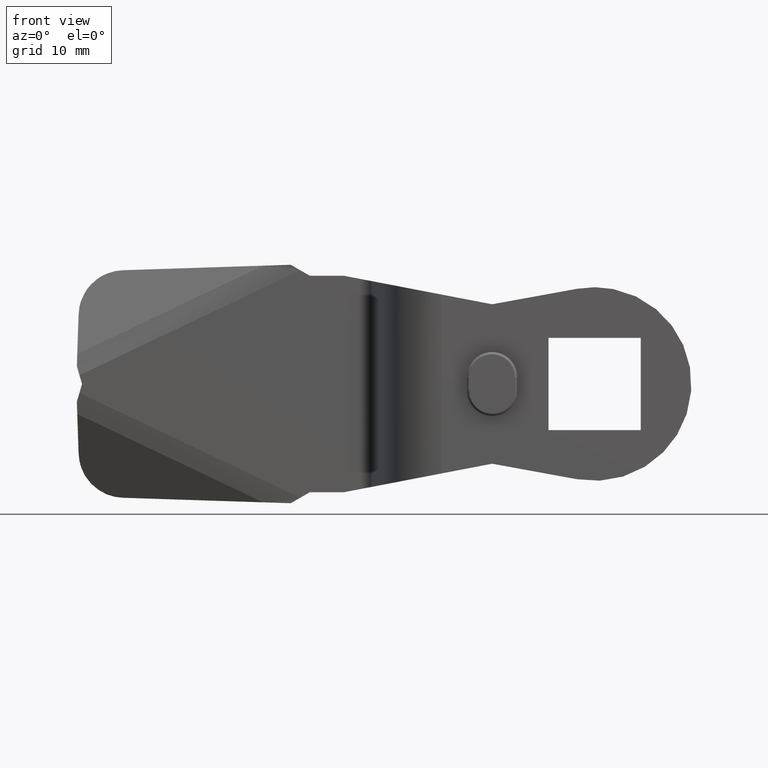
[diagram: clean part render]
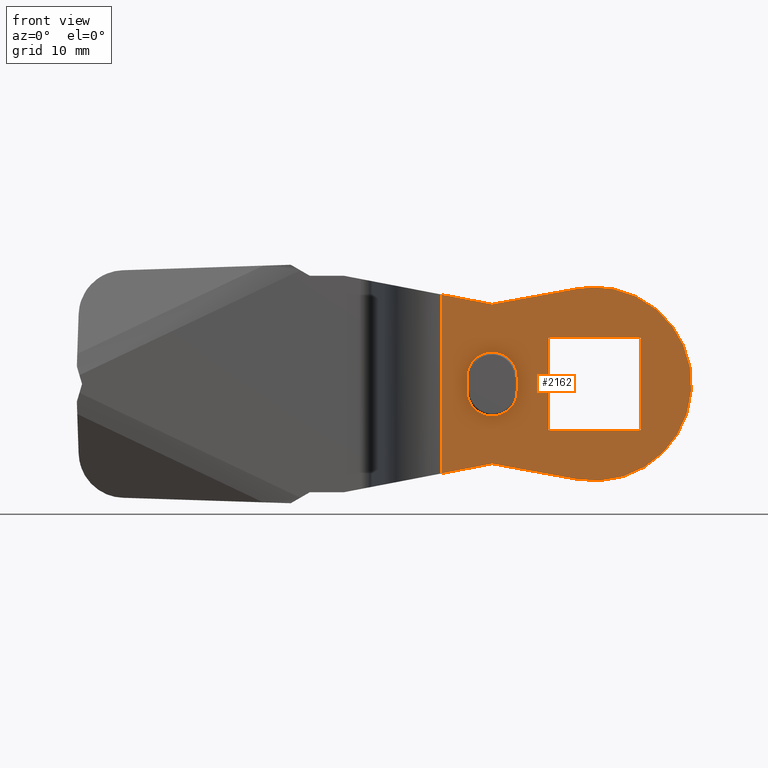
[diagram: same view with one face highlighted and labeled with its STEP entity id]
A machine part, front view. The second image highlights one B-rep face of the part: STEP entity #2162.
In plain terms, the highlighted face is a freeform B-spline surface patch.
Its self-contained STEP definition (entity closure, byte-faithful):
#737=CARTESIAN_POINT('',(-13.454972539541940,-22.000000189999898,7.856725738648650));
#738=VERTEX_POINT('',#737);
#759=CARTESIAN_POINT('',(-13.454972539541940,-22.000000189999952,-7.856725738648660));
#760=VERTEX_POINT('',#759);
#774=CARTESIAN_POINT('',(-13.454972539541940,-22.000000189999898,7.856725738648650));
#775=CARTESIAN_POINT('',(-13.454972539541940,-22.000000189999952,-7.856725738648660));
#776=QUASI_UNIFORM_CURVE('',1,(#774,#775),.UNSPECIFIED.,.F.,.U.);
#777=EDGE_CURVE('',#738,#760,#776,.T.);
#962=CARTESIAN_POINT('',(-6.800000322982700,-22.000000190000051,-0.600000028281858));
#963=VERTEX_POINT('',#962);
#970=CARTESIAN_POINT('',(-11.200000531971501,-22.000000190000051,-0.600000027900421));
#971=VERTEX_POINT('',#970);
#977=CARTESIAN_POINT('',(-11.200000531971479,-22.000000190000051,-0.600000027900420));
#978=CARTESIAN_POINT('',(-11.200000532316771,-22.000000190000048,-1.870170680628504));
#979=CARTESIAN_POINT('',(-10.100000480007040,-22.000000190000051,-2.505256007155796));
#980=CARTESIAN_POINT('',(-9.000000427697312,-22.000000190000048,-3.140341333683089));
#981=CARTESIAN_POINT('',(-7.900000375277472,-22.000000190000051,-2.505256007346515));
#982=CARTESIAN_POINT('',(-6.800000322857630,-22.000000190000048,-1.870170681009942));
#983=CARTESIAN_POINT('',(-6.800000322982699,-22.000000190000051,-0.600000028281858));
#991=(BOUNDED_CURVE()B_SPLINE_CURVE(2,(#977,#978,#979,#980,#981,#982,#983),.UNSPECIFIED.,.F.,.U.)B_SPLINE_CURVE_WITH_KNOTS((3,2,2,3),(0.0,0.333333333333333,0.666666666666667,1.0),.UNSPECIFIED.)CURVE()GEOMETRIC_REPRESENTATION_ITEM()RATIONAL_B_SPLINE_CURVE((1.0,0.866025403753579,1.0,0.866025403753579,1.0,0.866025403753579,1.0))REPRESENTATION_ITEM(''));
#992=EDGE_CURVE('',#971,#963,#991,.T.);
#1004=CARTESIAN_POINT('',(-11.200000531971501,-22.000000190000051,0.600000028498428));
#1005=VERTEX_POINT('',#1004);
#1011=CARTESIAN_POINT('',(-11.200000531971501,-22.000000190000051,0.600000028498428));
#1012=CARTESIAN_POINT('',(-11.200000531971501,-22.000000190000051,-0.600000027900421));
#1013=QUASI_UNIFORM_CURVE('',1,(#1011,#1012),.UNSPECIFIED.,.F.,.U.);
#1014=EDGE_CURVE('',#1005,#971,#1013,.T.);
#1039=CARTESIAN_POINT('',(-6.800000322982689,-22.000000190000051,0.600000027900379));
#1040=VERTEX_POINT('',#1039);
#1046=CARTESIAN_POINT('',(-6.800000322982695,-22.000000190000051,0.600000027900379));
#1047=CARTESIAN_POINT('',(-6.800000322637410,-22.000000190000044,1.870170680580322));
#1048=CARTESIAN_POINT('',(-7.900000374884608,-22.000000190000051,2.505256007119644));
#1049=CARTESIAN_POINT('',(-9.000000427131807,-22.000000190000044,3.140341333658965));
#1050=CARTESIAN_POINT('',(-10.100000479551641,-22.000000190000051,2.505256007418669));
#1051=CARTESIAN_POINT('',(-11.200000531971485,-22.000000190000044,1.870170681178371));
#1052=CARTESIAN_POINT('',(-11.200000531971490,-22.000000190000051,0.600000028498428));
#1060=(BOUNDED_CURVE()B_SPLINE_CURVE(2,(#1046,#1047,#1048,#1049,#1050,#1051,#1052),.UNSPECIFIED.,.F.,.U.)B_SPLINE_CURVE_WITH_KNOTS((3,2,2,3),(0.0,0.333333333333333,0.666666666666667,1.0),.UNSPECIFIED.)CURVE()GEOMETRIC_REPRESENTATION_ITEM()RATIONAL_B_SPLINE_CURVE((1.0,0.866025403761785,1.0,0.866025403761785,1.0,0.866025403761785,1.0))REPRESENTATION_ITEM(''));
#1061=EDGE_CURVE('',#1040,#1005,#1060,.T.);
#1074=CARTESIAN_POINT('',(-6.800000322982700,-22.000000190000051,-0.600000028281858));
#1075=CARTESIAN_POINT('',(-6.800000322982689,-22.000000190000051,0.600000027900379));
#1076=QUASI_UNIFORM_CURVE('',1,(#1074,#1075),.UNSPECIFIED.,.F.,.U.);
#1077=EDGE_CURVE('',#963,#1040,#1076,.T.);
#1550=CARTESIAN_POINT('',(-4.050000192364635,-22.000000199999949,4.050000192364690));
#1551=VERTEX_POINT('',#1550);
#1557=CARTESIAN_POINT('',(-4.050000192364635,-22.000000199999949,-4.050000192364680));
#1558=VERTEX_POINT('',#1557);
#1559=CARTESIAN_POINT('',(-4.050000192364635,-22.000000199999949,-4.050000192364680));
#1560=CARTESIAN_POINT('',(-4.050000192364635,-22.000000199999949,4.050000192364690));
#1561=QUASI_UNIFORM_CURVE('',1,(#1559,#1560),.UNSPECIFIED.,.F.,.U.);
#1562=EDGE_CURVE('',#1558,#1551,#1561,.T.);
#1584=CARTESIAN_POINT('',(4.050000192364690,-22.000000199999949,4.050000192364690));
#1585=VERTEX_POINT('',#1584);
#1591=CARTESIAN_POINT('',(-4.050000192364635,-22.000000199999949,4.050000192364690));
#1592=CARTESIAN_POINT('',(4.050000192364690,-22.000000199999949,4.050000192364690));
#1593=QUASI_UNIFORM_CURVE('',1,(#1591,#1592),.UNSPECIFIED.,.F.,.U.);
#1594=EDGE_CURVE('',#1551,#1585,#1593,.T.);
#1612=CARTESIAN_POINT('',(4.050000192364690,-22.000000199999949,-4.050000192364665));
#1613=VERTEX_POINT('',#1612);
#1619=CARTESIAN_POINT('',(4.050000192364690,-22.000000199999949,4.050000192364690));
#1620=CARTESIAN_POINT('',(4.050000192364690,-22.000000199999949,-4.050000192364665));
#1621=QUASI_UNIFORM_CURVE('',1,(#1619,#1620),.UNSPECIFIED.,.F.,.U.);
#1622=EDGE_CURVE('',#1585,#1613,#1621,.T.);
#1639=CARTESIAN_POINT('',(4.050000192364690,-22.000000199999949,-4.050000192364665));
#1640=CARTESIAN_POINT('',(-4.050000192364635,-22.000000199999949,-4.050000192364680));
#1641=QUASI_UNIFORM_CURVE('',1,(#1639,#1640),.UNSPECIFIED.,.F.,.U.);
#1642=EDGE_CURVE('',#1613,#1558,#1641,.T.);
#1653=CARTESIAN_POINT('',(-9.000000427477108,-22.000000189999952,-7.000000332482510));
#1654=VERTEX_POINT('',#1653);
#1669=CARTESIAN_POINT('',(-1.523762737230910,-22.000000199999949,-8.362305542373751));
#1670=VERTEX_POINT('',#1669);
#1676=CARTESIAN_POINT('',(-9.000000427477108,-22.000000189999952,-7.000000332482510));
#1677=CARTESIAN_POINT('',(-1.523762737230910,-22.000000199999949,-8.362305542373751));
#1678=QUASI_UNIFORM_CURVE('',1,(#1676,#1677),.UNSPECIFIED.,.F.,.U.);
#1679=EDGE_CURVE('',#1654,#1670,#1678,.T.);
#1689=CARTESIAN_POINT('',(-1.523762737230910,-22.000000199999949,8.362305542373589));
#1690=VERTEX_POINT('',#1689);
#1705=CARTESIAN_POINT('',(-9.000000427477460,-22.000000199999949,7.000000332482490));
#1706=VERTEX_POINT('',#1705);
#1712=CARTESIAN_POINT('',(-1.523762737230910,-22.000000199999949,8.362305542373589));
#1713=CARTESIAN_POINT('',(-9.000000427477460,-22.000000199999949,7.000000332482490));
#1714=QUASI_UNIFORM_CURVE('',1,(#1712,#1713),.UNSPECIFIED.,.F.,.U.);
#1715=EDGE_CURVE('',#1690,#1706,#1714,.T.);
#1756=CARTESIAN_POINT('',(-1.523762737230910,-22.000000199999949,-8.362305542373751));
#1757=CARTESIAN_POINT('',(3.999032446587344,-22.000000199999945,-9.368658331543481));
#1758=CARTESIAN_POINT('',(7.092747502208310,-22.000000199999949,-4.684329165771723));
#1759=CARTESIAN_POINT('',(10.186462557829273,-22.000000199999945,3.589490E-014));
#1760=CARTESIAN_POINT('',(7.092747502208290,-22.000000199999949,4.684329165771781));
#1761=CARTESIAN_POINT('',(3.999032446587307,-22.000000199999945,9.368658331543525));
#1762=CARTESIAN_POINT('',(-1.523762737230910,-22.000000199999949,8.362305542373589));
#1770=(BOUNDED_CURVE()B_SPLINE_CURVE(2,(#1756,#1757,#1758,#1759,#1760,#1761,#1762),.UNSPECIFIED.,.F.,.U.)B_SPLINE_CURVE_WITH_KNOTS((3,2,2,3),(0.0,0.333333333333333,0.666666666666667,1.0),.UNSPECIFIED.)CURVE()GEOMETRIC_REPRESENTATION_ITEM()RATIONAL_B_SPLINE_CURVE((1.0,0.834440842978928,1.0,0.834440842978928,1.0,0.834440842978928,1.0))REPRESENTATION_ITEM(''));
#1771=EDGE_CURVE('',#1670,#1690,#1770,.T.);
#1956=CARTESIAN_POINT('',(-13.454972539541940,-22.000000189999952,-7.856725738648660));
#1957=CARTESIAN_POINT('',(-9.000000427477108,-22.000000189999952,-7.000000332482510));
#1958=QUASI_UNIFORM_CURVE('',1,(#1956,#1957),.UNSPECIFIED.,.F.,.U.);
#1959=EDGE_CURVE('',#760,#1654,#1958,.T.);
#2018=CARTESIAN_POINT('',(-9.000000427477460,-22.000000199999949,7.000000332482490));
#2019=CARTESIAN_POINT('',(-13.454972539541940,-22.000000189999898,7.856725738648650));
#2020=QUASI_UNIFORM_CURVE('',1,(#2018,#2019),.UNSPECIFIED.,.F.,.U.);
#2021=EDGE_CURVE('',#1706,#738,#2020,.T.);
#2137=CARTESIAN_POINT('',(-14.551623110969130,-22.000000199999949,9.349129076291225));
#2138=CARTESIAN_POINT('',(9.596650189984514,-22.000000199999949,9.349129076291225));
#2139=CARTESIAN_POINT('',(-14.551623110969130,-22.000000199999949,-9.349129157347084));
#2140=CARTESIAN_POINT('',(9.596650189984514,-22.000000199999949,-9.349129157347084));
#2141=B_SPLINE_SURFACE_WITH_KNOTS('',1,1,((#2137,#2139),(#2138,#2140)),.UNSPECIFIED.,.F.,.F.,.U.,(2,2),(2,2),(0.0,24.148273300953651),(0.0,18.698258233638310),.UNSPECIFIED.);
#2142=ORIENTED_EDGE('',*,*,#2021,.T.);
#2143=ORIENTED_EDGE('',*,*,#777,.T.);
#2144=ORIENTED_EDGE('',*,*,#1959,.T.);
#2145=ORIENTED_EDGE('',*,*,#1679,.T.);
#2146=ORIENTED_EDGE('',*,*,#1771,.T.);
#2147=ORIENTED_EDGE('',*,*,#1715,.T.);
#2148=EDGE_LOOP('',(#2142,#2143,#2144,#2145,#2146,#2147));
#2149=FACE_OUTER_BOUND('',#2148,.T.);
#2150=ORIENTED_EDGE('',*,*,#1622,.T.);
#2151=ORIENTED_EDGE('',*,*,#1642,.T.);
#2152=ORIENTED_EDGE('',*,*,#1562,.T.);
#2153=ORIENTED_EDGE('',*,*,#1594,.T.);
#2154=EDGE_LOOP('',(#2150,#2151,#2152,#2153));
#2155=FACE_BOUND('',#2154,.T.);
#2156=ORIENTED_EDGE('',*,*,#1061,.F.);
#2157=ORIENTED_EDGE('',*,*,#1077,.F.);
#2158=ORIENTED_EDGE('',*,*,#992,.F.);
#2159=ORIENTED_EDGE('',*,*,#1014,.F.);
#2160=EDGE_LOOP('',(#2156,#2157,#2158,#2159));
#2161=FACE_BOUND('',#2160,.T.);
#2162=ADVANCED_FACE('',(#2149,#2155,#2161),#2141,.F.);